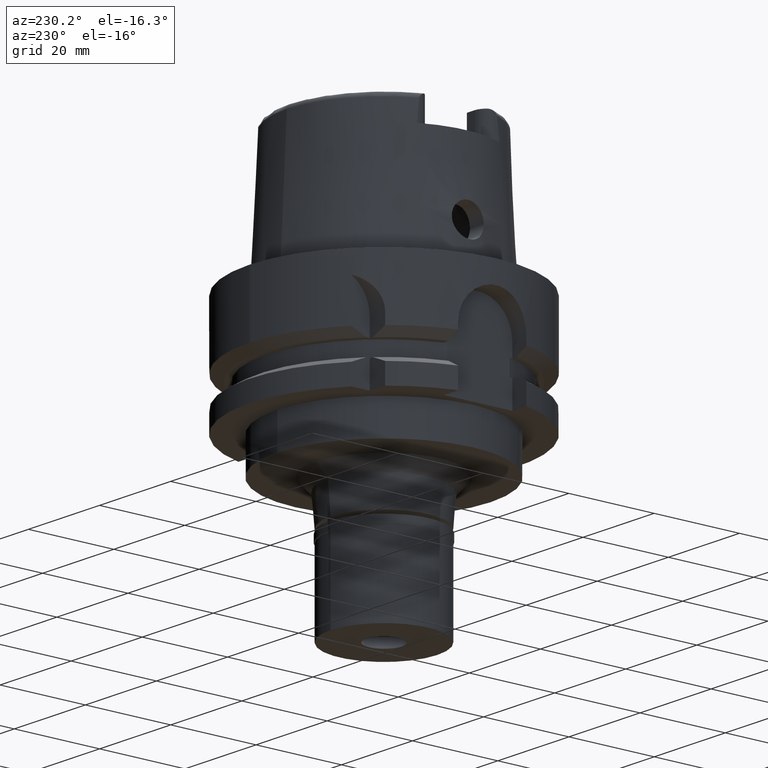
[diagram: clean part render]
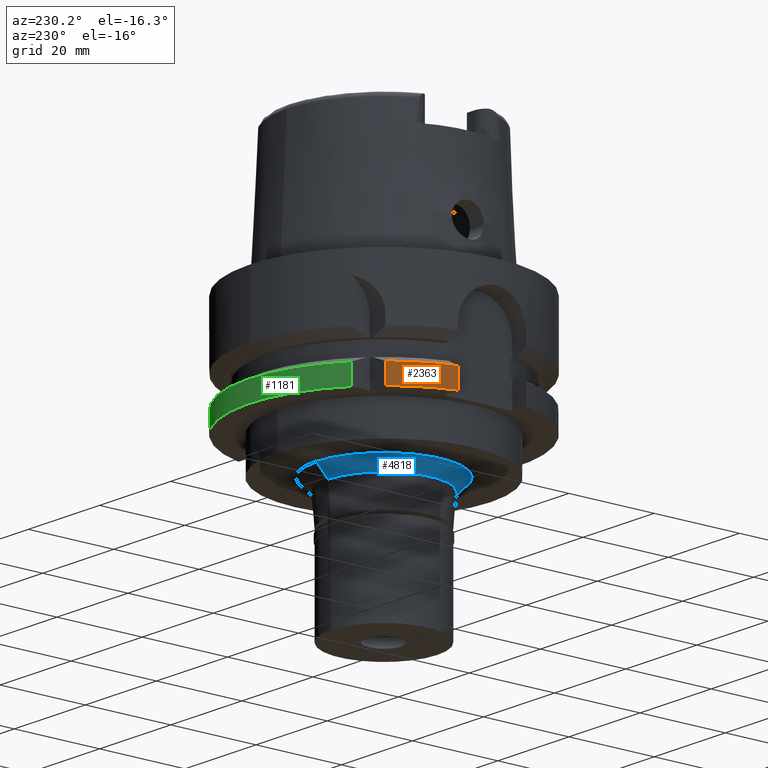
[diagram: same view with three faces highlighted in distinct colors, each labeled with its STEP entity id]
A machine part, auxiliary view with three faces highlighted in distinct colors.
Their STEP definitions:

[orange] entity #2363 — the highlighted cylindrical surface (partial cylindrical patch) has radius 31.5 mm, axis along (0, 0, 1).
#187 = CIRCLE ( 'NONE', #5021, 31.50000000000000711 ) ;
#245 = ORIENTED_EDGE ( 'NONE', *, *, #1947, .F. ) ;
#450 = LINE ( 'NONE', #3052, #5193 ) ;
#587 = LINE ( 'NONE', #1068, #4365 ) ;
#636 = DIRECTION ( 'NONE',  ( 0.0000000000000000000, 1.000000000000000000, 0.0000000000000000000 ) ) ;
#1055 = EDGE_LOOP ( 'NONE', ( #3392, #2344, #4331, #245 ) ) ;
#1059 = EDGE_CURVE ( 'NONE', #2265, #4881, #587, .T. ) ;
#1068 = CARTESIAN_POINT ( 'NONE',  ( -30.46719550073999727, 7.999999894965000635, -21.37749812124000215 ) ) ;
#1276 = AXIS2_PLACEMENT_3D ( 'NONE', #4240, #2925, #2612 ) ;
#1484 = CARTESIAN_POINT ( 'NONE',  ( 0.0000000000000000000, 0.0000000000000000000, 0.0000000000000000000 ) ) ;
#1755 = DIRECTION ( 'NONE',  ( -0.7725773665802099233, 0.6349206349206079070, 0.0000000000000000000 ) ) ;
#1831 = CARTESIAN_POINT ( 'NONE',  ( -30.46719547317000121, 8.000000000001000089, -21.37749907476000288 ) ) ;
#1947 = EDGE_CURVE ( 'NONE', #5169, #4913, #450, .T. ) ;
#2187 = DIRECTION ( 'NONE',  ( -5.375450050143217706E-07, -6.540899232592266923E-07, 0.9999999999996415090 ) ) ;
#2265 = VERTEX_POINT ( 'NONE', #1831 ) ;
#2316 = CARTESIAN_POINT ( 'NONE',  ( -24.33618953209000324, 19.99999697646000030, -21.37748824071000087 ) ) ;
#2344 = ORIENTED_EDGE ( 'NONE', *, *, #1059, .F. ) ;
#2363 = ADVANCED_FACE ( 'NONE', ( #4551 ), #5408, .T. ) ;
#2419 = CARTESIAN_POINT ( 'NONE',  ( -24.33618704727999926, 20.00000000000000000, -26.00000000000000000 ) ) ;
#2446 = CIRCLE ( 'NONE', #1276, 31.50000000000000000 ) ;
#2583 = EDGE_CURVE ( 'NONE', #2265, #4913, #2446, .T. ) ;
#2612 = DIRECTION ( 'NONE',  ( -0.9672125547036138915, 0.2539682539683034701, 0.0000000000000000000 ) ) ;
#2807 = DIRECTION ( 'NONE',  ( 5.966537522614997576E-09, 2.272265384031998908E-08, -0.9999999999999996669 ) ) ;
#2925 = DIRECTION ( 'NONE',  ( 0.0000000000000000000, 0.0000000000000000000, -1.000000000000000000 ) ) ;
#3017 = DIRECTION ( 'NONE',  ( 0.0000000000000000000, 0.0000000000000000000, 1.000000000000000000 ) ) ;
#3052 = CARTESIAN_POINT ( 'NONE',  ( -24.33618704727999926, 20.00000000000000000, -26.00000000000000000 ) ) ;
#3237 = DIRECTION ( 'NONE',  ( 0.0000000000000000000, 0.0000000000000000000, 1.000000000000000000 ) ) ;
#3392 = ORIENTED_EDGE ( 'NONE', *, *, #3663, .T. ) ;
#3663 = EDGE_CURVE ( 'NONE', #5169, #4881, #187, .T. ) ;
#3868 = CARTESIAN_POINT ( 'NONE',  ( 0.0000000000000000000, 0.0000000000000000000, -26.00000000000000000 ) ) ;
#4240 = CARTESIAN_POINT ( 'NONE',  ( 0.0000000000000000000, 0.0000000000000000000, -21.37749907476000288 ) ) ;
#4331 = ORIENTED_EDGE ( 'NONE', *, *, #2583, .T. ) ;
#4365 = VECTOR ( 'NONE', #2807, 1000.000000000000114 ) ;
#4523 = CARTESIAN_POINT ( 'NONE',  ( -30.46719547316000032, 8.000000000000000000, -26.00000000000000000 ) ) ;
#4551 = FACE_OUTER_BOUND ( 'NONE', #1055, .T. ) ;
#4881 = VERTEX_POINT ( 'NONE', #4523 ) ;
#4913 = VERTEX_POINT ( 'NONE', #2316 ) ;
#5021 = AXIS2_PLACEMENT_3D ( 'NONE', #3868, #3017, #1755 ) ;
#5169 = VERTEX_POINT ( 'NONE', #2419 ) ;
#5193 = VECTOR ( 'NONE', #2187, 1000.000000000000114 ) ;
#5373 = AXIS2_PLACEMENT_3D ( 'NONE', #1484, #3237, #636 ) ;
#5408 = CYLINDRICAL_SURFACE ( 'NONE', #5373, 31.50000000000000000 ) ;

[blue] entity #4818 — the highlighted conical surface has half-angle 45 deg.
#275 = AXIS2_PLACEMENT_3D ( 'NONE', #3816, #2532, #5283 ) ;
#307 = LINE ( 'NONE', #3815, #2991 ) ;
#581 = FACE_OUTER_BOUND ( 'NONE', #3543, .T. ) ;
#647 = ORIENTED_EDGE ( 'NONE', *, *, #2696, .T. ) ;
#742 = AXIS2_PLACEMENT_3D ( 'NONE', #3210, #2289, #4140 ) ;
#795 = DIRECTION ( 'NONE',  ( 0.0000000000000000000, 0.7071067811868976261, -0.7071067811861975194 ) ) ;
#874 = LINE ( 'NONE', #1635, #4285 ) ;
#1011 = VERTEX_POINT ( 'NONE', #4961 ) ;
#1016 = ORIENTED_EDGE ( 'NONE', *, *, #1778, .F. ) ;
#1210 = CARTESIAN_POINT ( 'NONE',  ( 0.0000000000000000000, 15.90367177832999879, -34.00000000000000000 ) ) ;
#1281 = ORIENTED_EDGE ( 'NONE', *, *, #5214, .T. ) ;
#1283 = CIRCLE ( 'NONE', #275, 13.10367177832999985 ) ;
#1374 = CARTESIAN_POINT ( 'NONE',  ( 0.0000000000000000000, 0.0000000000000000000, -34.00000000000000000 ) ) ;
#1463 = VERTEX_POINT ( 'NONE', #4970 ) ;
#1635 = CARTESIAN_POINT ( 'NONE',  ( 0.0000000000000000000, 15.90367177832999879, -34.00000000000000000 ) ) ;
#1778 = EDGE_CURVE ( 'NONE', #1011, #2353, #307, .T. ) ;
#2289 = DIRECTION ( 'NONE',  ( 0.0000000000000000000, 0.0000000000000000000, 1.000000000000000000 ) ) ;
#2353 = VERTEX_POINT ( 'NONE', #2827 ) ;
#2532 = DIRECTION ( 'NONE',  ( 0.0000000000000000000, 0.0000000000000000000, -1.000000000000000000 ) ) ;
#2696 = EDGE_CURVE ( 'NONE', #3989, #1463, #874, .T. ) ;
#2827 = CARTESIAN_POINT ( 'NONE',  ( 0.0000000000000000000, -13.10367177832999985, -36.79999999999999716 ) ) ;
#2991 = VECTOR ( 'NONE', #795, 1000.000000000000000 ) ;
#3210 = CARTESIAN_POINT ( 'NONE',  ( 0.0000000000000000000, 0.0000000000000000000, -35.39999999999999858 ) ) ;
#3270 = EDGE_CURVE ( 'NONE', #2353, #1463, #1283, .T. ) ;
#3543 = EDGE_LOOP ( 'NONE', ( #4700, #1016, #1281, #647 ) ) ;
#3815 = CARTESIAN_POINT ( 'NONE',  ( 0.0000000000000000000, -15.90367177832999879, -34.00000000000000000 ) ) ;
#3816 = CARTESIAN_POINT ( 'NONE',  ( 0.0000000000000000000, 0.0000000000000000000, -36.79999999999999716 ) ) ;
#3839 = AXIS2_PLACEMENT_3D ( 'NONE', #1374, #4354, #3909 ) ;
#3909 = DIRECTION ( 'NONE',  ( 0.0000000000000000000, -1.000000000000000000, 0.0000000000000000000 ) ) ;
#3989 = VERTEX_POINT ( 'NONE', #1210 ) ;
#4109 = CIRCLE ( 'NONE', #3839, 15.90367177832999879 ) ;
#4140 = DIRECTION ( 'NONE',  ( 0.0000000000000000000, 1.000000000000000000, 0.0000000000000000000 ) ) ;
#4270 = DIRECTION ( 'NONE',  ( 0.0000000000000000000, -0.7071067811868976261, -0.7071067811861975194 ) ) ;
#4285 = VECTOR ( 'NONE', #4270, 1000.000000000000000 ) ;
#4354 = DIRECTION ( 'NONE',  ( 0.0000000000000000000, 0.0000000000000000000, -1.000000000000000000 ) ) ;
#4700 = ORIENTED_EDGE ( 'NONE', *, *, #3270, .F. ) ;
#4818 = ADVANCED_FACE ( 'NONE', ( #581 ), #4952, .T. ) ;
#4952 = CONICAL_SURFACE ( 'NONE', #742, 14.50367177833000021, 0.7853981633972997312 ) ;
#4961 = CARTESIAN_POINT ( 'NONE',  ( 0.0000000000000000000, -15.90367177832999879, -34.00000000000000000 ) ) ;
#4970 = CARTESIAN_POINT ( 'NONE',  ( 0.0000000000000000000, 13.10367177832999985, -36.79999999999999716 ) ) ;
#5214 = EDGE_CURVE ( 'NONE', #1011, #3989, #4109, .T. ) ;
#5283 = DIRECTION ( 'NONE',  ( 0.0000000000000000000, -1.000000000000000000, 0.0000000000000000000 ) ) ;

[green] entity #1181 — the highlighted cylindrical surface (partial cylindrical patch) has radius 31.5 mm, axis along (0, 0, 1).
#250 = DIRECTION ( 'NONE',  ( -4.466728769418943300E-08, 1.498189334686981853E-07, 0.9999999999999876765 ) ) ;
#321 = CARTESIAN_POINT ( 'NONE',  ( -20.00000000000000000, 24.33617949844698458, -22.91836563500000068 ) ) ;
#332 = LINE ( 'NONE', #5022, #5018 ) ;
#403 = DIRECTION ( 'NONE',  ( 0.0000000000000000000, 0.0000000000000000000, 1.000000000000000000 ) ) ;
#596 = EDGE_CURVE ( 'NONE', #5595, #5612, #4901, .T. ) ;
#623 = CARTESIAN_POINT ( 'NONE',  ( -20.00000000000000000, 24.33618704727999926, -26.00000000000000000 ) ) ;
#831 = CARTESIAN_POINT ( 'NONE',  ( 30.18691748976999989, 9.000000692536998415, -21.37750466061000409 ) ) ;
#950 = FACE_OUTER_BOUND ( 'NONE', #1602, .T. ) ;
#971 = DIRECTION ( 'NONE',  ( 0.0000000000000000000, 1.000000000000000000, 0.0000000000000000000 ) ) ;
#1181 = ADVANCED_FACE ( 'NONE', ( #950 ), #2694, .T. ) ;
#1312 = B_SPLINE_CURVE_WITH_KNOTS ( 'NONE', 3,
 ( #2512, #321, #1321, #5552 ),
 .UNSPECIFIED., .F., .F.,
 ( 4, 4 ),
 ( 0.0000000000000000000, 1.000000000000000000 ),
 .UNSPECIFIED. ) ;
#1321 = CARTESIAN_POINT ( 'NONE',  ( -20.00000000000000000, 24.33618327286396621, -24.45918281749999679 ) ) ;
#1575 = VERTEX_POINT ( 'NONE', #623 ) ;
#1602 = EDGE_LOOP ( 'NONE', ( #4620, #5621, #2565, #3588 ) ) ;
#2257 = AXIS2_PLACEMENT_3D ( 'NONE', #4916, #2313, #971 ) ;
#2313 = DIRECTION ( 'NONE',  ( 0.0000000000000000000, 0.0000000000000000000, 1.000000000000000000 ) ) ;
#2503 = CARTESIAN_POINT ( 'NONE',  ( -20.00001377820999693, 24.33617572402999940, -21.37754845249999747 ) ) ;
#2512 = CARTESIAN_POINT ( 'NONE',  ( -20.00001377820999693, 24.33617572402999940, -21.37754845249999747 ) ) ;
#2535 = CARTESIAN_POINT ( 'NONE',  ( 0.0000000000000000000, 0.0000000000000000000, -26.00000000000000000 ) ) ;
#2565 = ORIENTED_EDGE ( 'NONE', *, *, #4445, .T. ) ;
#2694 = CYLINDRICAL_SURFACE ( 'NONE', #2257, 31.50000000000000000 ) ;
#3060 = DIRECTION ( 'NONE',  ( -0.6349206349206079070, 0.7725773665802099233, 0.0000000000000000000 ) ) ;
#3184 = CARTESIAN_POINT ( 'NONE',  ( 30.18691769625000276, 9.000000000000000000, -26.00000000000000000 ) ) ;
#3209 = CIRCLE ( 'NONE', #4668, 31.50000000000000000 ) ;
#3215 = EDGE_CURVE ( 'NONE', #4812, #5612, #332, .T. ) ;
#3588 = ORIENTED_EDGE ( 'NONE', *, *, #3972, .F. ) ;
#3972 = EDGE_CURVE ( 'NONE', #5595, #1575, #1312, .T. ) ;
#4281 = DIRECTION ( 'NONE',  ( 0.0000000000000000000, 1.000000000000000000, 0.0000000000000000000 ) ) ;
#4445 = EDGE_CURVE ( 'NONE', #4812, #1575, #3209, .T. ) ;
#4620 = ORIENTED_EDGE ( 'NONE', *, *, #596, .T. ) ;
#4626 = AXIS2_PLACEMENT_3D ( 'NONE', #5576, #5151, #3060 ) ;
#4668 = AXIS2_PLACEMENT_3D ( 'NONE', #2535, #403, #4281 ) ;
#4812 = VERTEX_POINT ( 'NONE', #3184 ) ;
#4901 = CIRCLE ( 'NONE', #4626, 31.50000000000000711 ) ;
#4916 = CARTESIAN_POINT ( 'NONE',  ( 0.0000000000000000000, 0.0000000000000000000, 0.0000000000000000000 ) ) ;
#5018 = VECTOR ( 'NONE', #250, 1000.000000000000114 ) ;
#5022 = CARTESIAN_POINT ( 'NONE',  ( 30.18691769625000276, 9.000000000000000000, -26.00000000000000000 ) ) ;
#5151 = DIRECTION ( 'NONE',  ( 0.0000000000000000000, 0.0000000000000000000, -1.000000000000000000 ) ) ;
#5552 = CARTESIAN_POINT ( 'NONE',  ( -20.00000000000000000, 24.33618704727999926, -26.00000000000000000 ) ) ;
#5576 = CARTESIAN_POINT ( 'NONE',  ( 0.0000000000000000000, 0.0000000000000000000, -21.37749907476000288 ) ) ;
#5595 = VERTEX_POINT ( 'NONE', #2503 ) ;
#5612 = VERTEX_POINT ( 'NONE', #831 ) ;
#5621 = ORIENTED_EDGE ( 'NONE', *, *, #3215, .F. ) ;